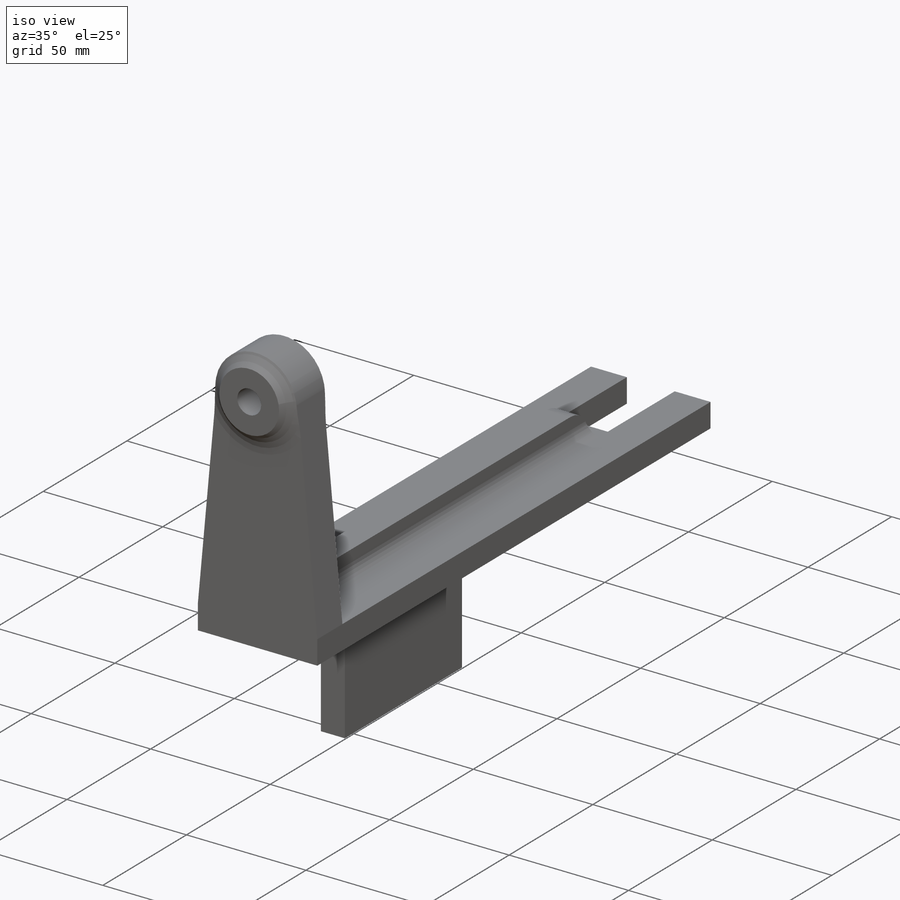
[diagram: iso view]
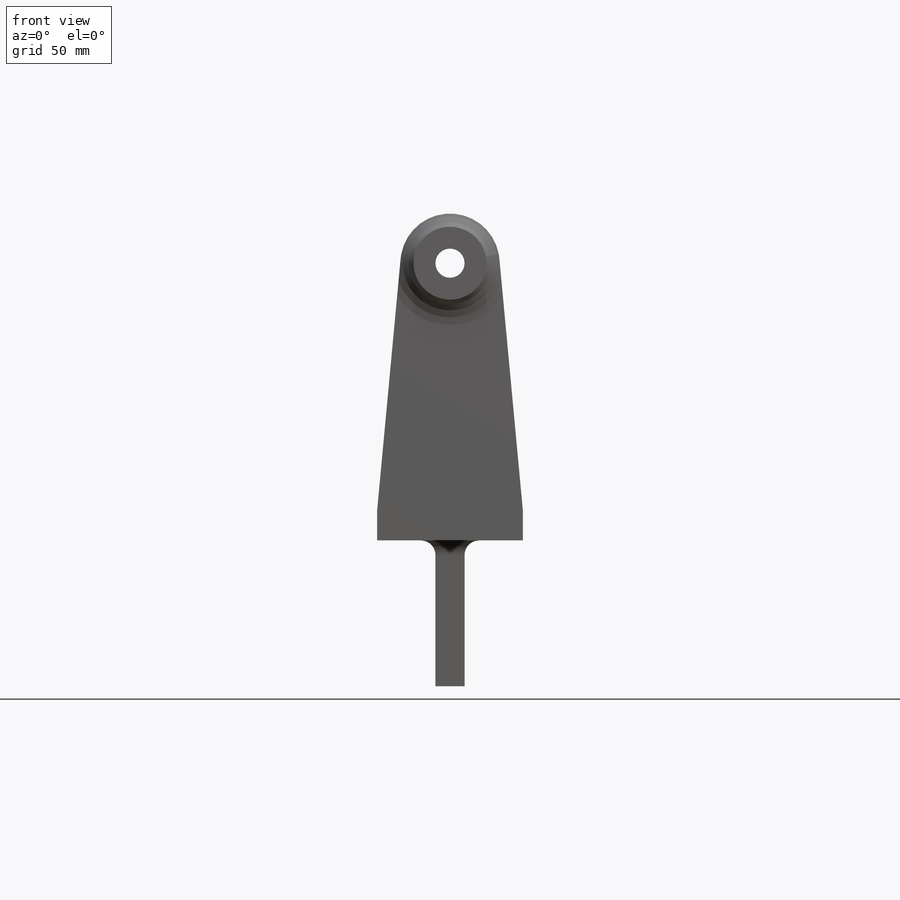
[diagram: front view]
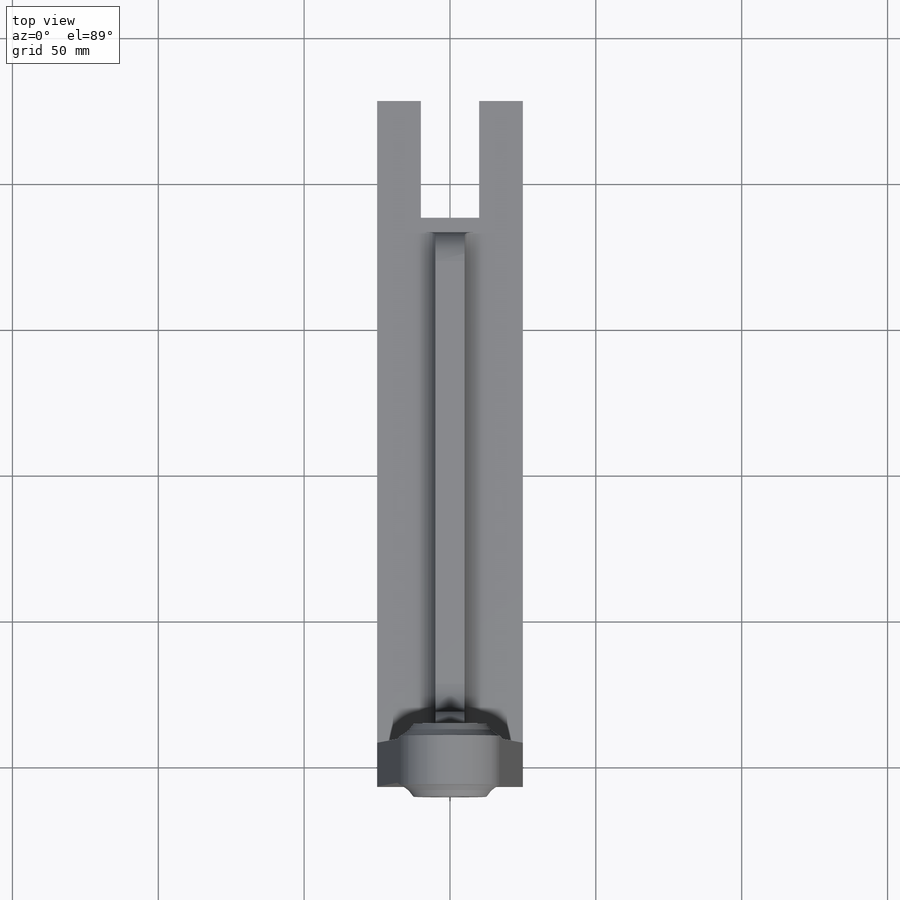
[diagram: top view]
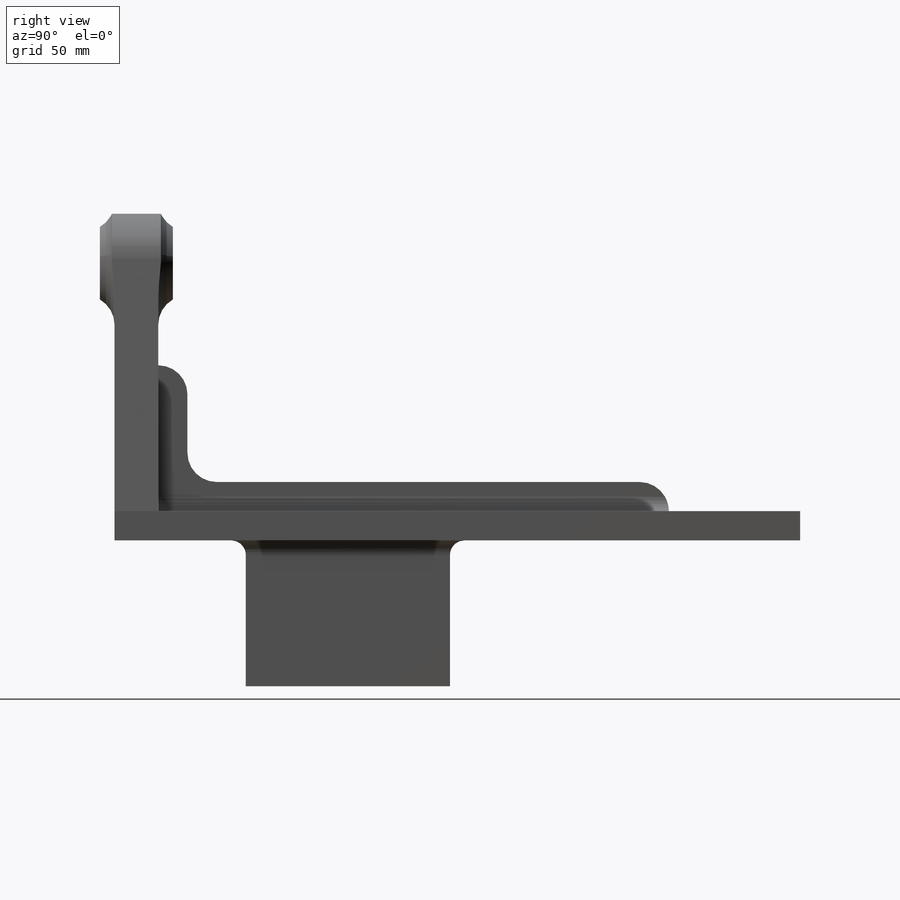
[diagram: right view]
SOLIDWORKS PART (.sldprt)
format: sldprt  version: not decoded by parser v0  size: 324,096 bytes
history: native  units: mm
features: sketch x9, extrude x7, fillet x6, cut_extrude x2, material x1, mirror x1 (+12 scaffold rows collapsed)
feature tree (38):
  scaffold x12  (default folders/planes/origin — collapsed)
  material  "Material <not specified>"
  sketch  "Sketch2"  dims[c1.D5=17.0mm c1.D3=17.0mm c1.D1=50.0mm c1.D2=0.0mm c2.D3=50.0mm c2.D4=95.0mm c2.D6=0.0mm c2.D7=50.0mm c2.D8=0.0mm c2.D9=10.0mm c3.D4=95.0mm]
  extrude  "Boss-Extrude1"  Depth=15mm
  sketch  "Sketch5"  dims[D1=10.0mm]
  extrude  "Boss-Extrude2"  Depth=235mm
  sketch  "Sketch6"  dims[D1=190.0mm D2=20.0mm D3=20.0mm D4=10.0mm]
  extrude  "Boss-Extrude3"  Depth=10mm
  sketch  "Sketch7"  dims[D1=45.0mm D2=70.0mm D3=10.0mm D4=20.0mm D5=20.0mm]
  extrude  "Boss-Extrude4"  Depth=50mm
  sketch  "Sketch8"  dims[c1.D1=~24.797155mm c2.D1=90.0deg c3.D1=10.0mm c3.D2=20.0mm c3.D3=60.0mm]
  extrude  "Boss-Extrude5"  Depth=10mm
  fillet  "Fillet3"  Radius=10mm
  sketch  "Sketch11"  dims[D1=15.0mm D2=15.0mm D3=10.0mm]
  cut_extrude  "Cut-Extrude2"  Depth=40mm
  fillet  "Fillet4"  Radius=10mm
  fillet  "Fillet5"  Radius=10mm
  fillet  "Fillet6"  Radius=5mm
  fillet  "Fillet7"  Radius=5mm
  sketch  "Sketch16"  dims[D1=25.0mm D2=95.0mm D3=25.0mm]
  extrude  "Boss-Extrude10"  Depth=5mm
  mirror  "Mirror1"
  sketch  "Sketch17"  dims[D1=16.0mm]
  cut_extrude  "Cut-Extrude3"  [1 undecoded]
  sketch  "Sketch20"  dims[D1=10.0mm D2=16.0mm]
  extrude  "Boss-Extrude13"  Depth=25mm
  fillet  "Fillet8"  Radius=10mm
decode coverage: 23 of 25 modeling features carry decoded parameters
note: ~ marks probable driven/reference dimensions
note: 1 parameter value undecoded
note: suppression state not decoded; provenance and decode notes live in map.json
